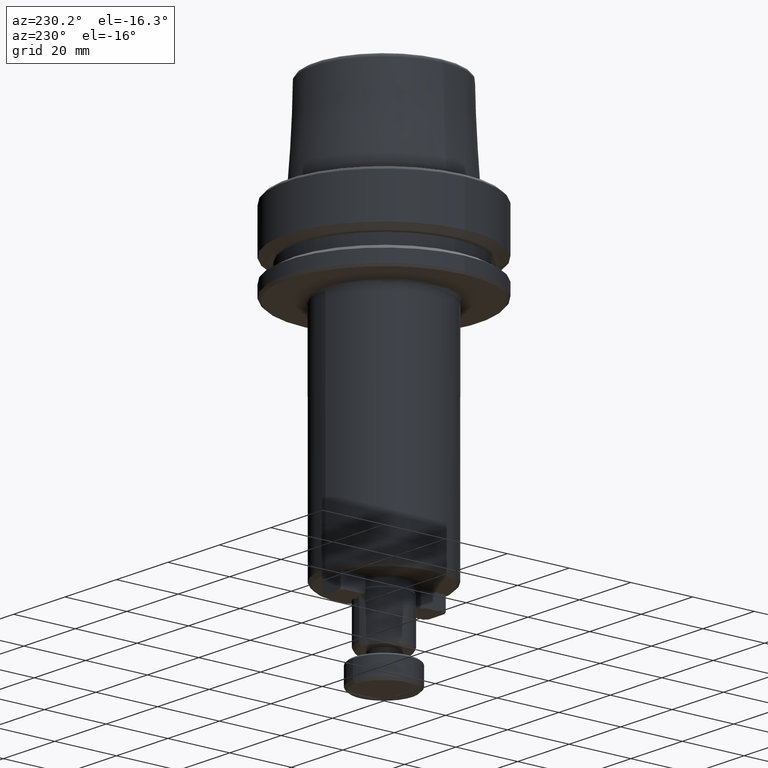
[diagram: clean part render]
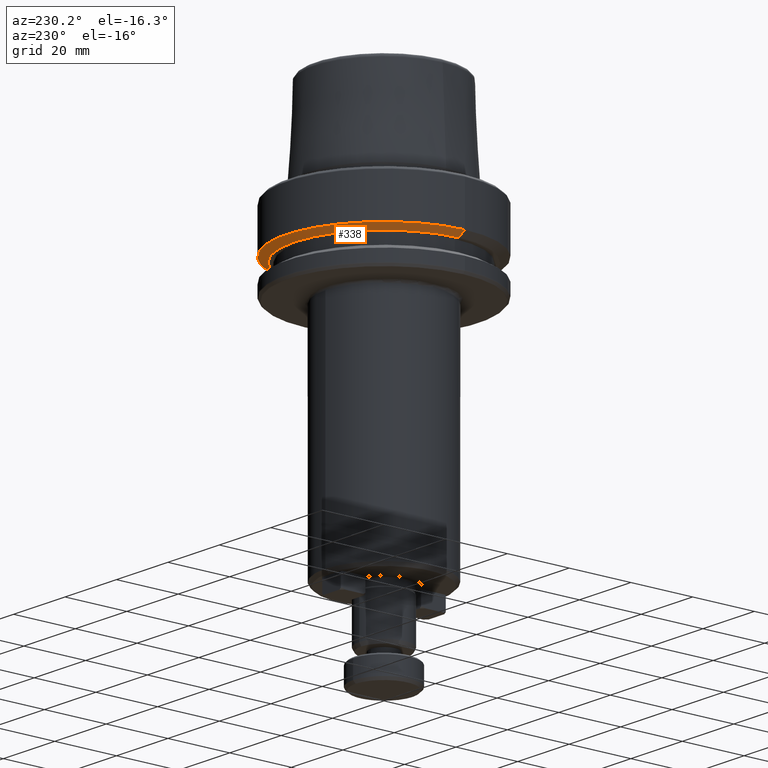
[diagram: same view with one face highlighted and labeled with its STEP entity id]
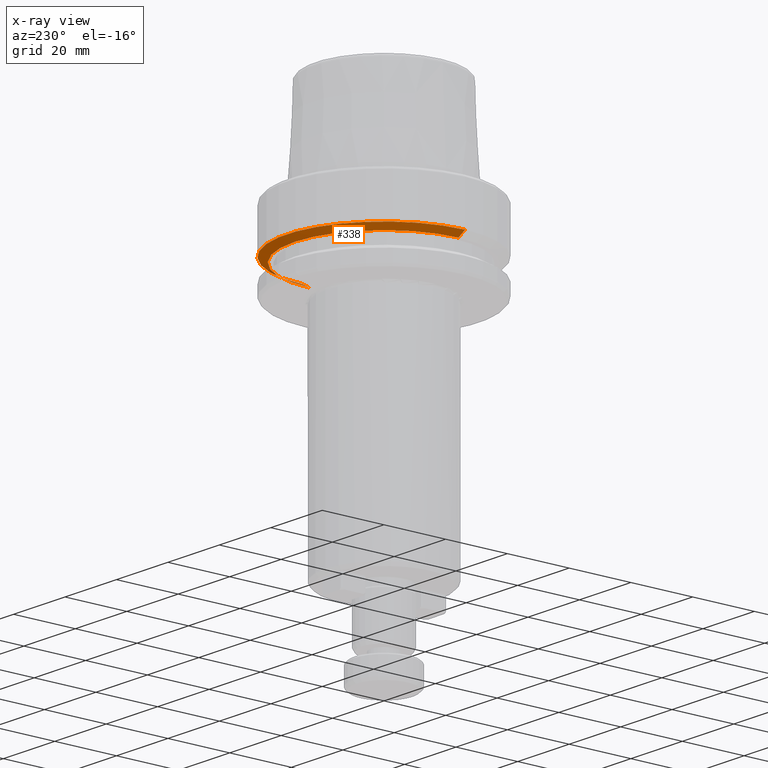
[diagram: x-ray of the same camera — body ghosted, the highlighted face saturated]
A machine part, auxiliary view. The second image highlights one B-rep face of the part: STEP entity #338.
The next image is the same camera in x-ray: the body ghosted, the highlighted face saturated — about 2% of this face is hidden behind the body in this view.
In plain terms, the highlighted conical surface has half-angle 60 deg.
Its self-contained STEP definition (entity closure, byte-faithful):
#29 = ORIENTED_EDGE ( 'NONE', *, *, #1712, .T. ) ;
#172 = DIRECTION ( 'NONE',  ( 1.000000000000000000, 0.0000000000000000000, 0.0000000000000000000 ) ) ;
#239 = VECTOR ( 'NONE', #1722, 1000.000000000000000 ) ;
#245 = DIRECTION ( 'NONE',  ( -0.0000000000000000000, -0.0000000000000000000, 1.000000000000000000 ) ) ;
#332 = VERTEX_POINT ( 'NONE', #556 ) ;
#338 = ADVANCED_FACE ( 'NONE', ( #2639 ), #1907, .T. ) ;
#500 = AXIS2_PLACEMENT_3D ( 'NONE', #2238, #925, #2453 ) ;
#504 = EDGE_CURVE ( 'NONE', #332, #1559, #1058, .T. ) ;
#556 = CARTESIAN_POINT ( 'NONE',  ( 28.94089653438085100, 0.0000000000000000000, -16.10000000000001600 ) ) ;
#570 = CIRCLE ( 'NONE', #500, 28.94089653438085100 ) ;
#573 = DIRECTION ( 'NONE',  ( -0.0000000000000000000, -0.0000000000000000000, 1.000000000000000000 ) ) ;
#590 = CARTESIAN_POINT ( 'NONE',  ( 31.50000000000000000, 0.0000000000000000000, -14.62250092524070100 ) ) ;
#652 = VERTEX_POINT ( 'NONE', #2752 ) ;
#748 = AXIS2_PLACEMENT_3D ( 'NONE', #1587, #573, #172 ) ;
#795 = ORIENTED_EDGE ( 'NONE', *, *, #2798, .T. ) ;
#906 = CIRCLE ( 'NONE', #1273, 31.50000000000000000 ) ;
#911 = DIRECTION ( 'NONE',  ( 0.8660254037844389300, 0.0000000000000000000, 0.4999999999999995000 ) ) ;
#925 = DIRECTION ( 'NONE',  ( -0.0000000000000000000, -0.0000000000000000000, 1.000000000000000000 ) ) ;
#1058 = LINE ( 'NONE', #2501, #2143 ) ;
#1273 = AXIS2_PLACEMENT_3D ( 'NONE', #1526, #245, #1738 ) ;
#1276 = CARTESIAN_POINT ( 'NONE',  ( -28.94089653438085100, 3.700937523921292900E-015, -16.10000000000001600 ) ) ;
#1481 = CARTESIAN_POINT ( 'NONE',  ( -28.94089653438085100, 3.544237630528423800E-015, -16.10000000000001600 ) ) ;
#1526 = CARTESIAN_POINT ( 'NONE',  ( 0.0000000000000000000, 0.0000000000000000000, -14.62250092524070100 ) ) ;
#1549 = EDGE_LOOP ( 'NONE', ( #795, #29, #1945, #1888 ) ) ;
#1559 = VERTEX_POINT ( 'NONE', #590 ) ;
#1587 = CARTESIAN_POINT ( 'NONE',  ( 0.0000000000000000000, 0.0000000000000000000, -16.10000000000001600 ) ) ;
#1712 = EDGE_CURVE ( 'NONE', #2577, #652, #2081, .T. ) ;
#1722 = DIRECTION ( 'NONE',  ( -0.8660254037844389300, 1.060575238724907300E-016, 0.4999999999999995000 ) ) ;
#1738 = DIRECTION ( 'NONE',  ( 1.000000000000000000, 0.0000000000000000000, 0.0000000000000000000 ) ) ;
#1888 = ORIENTED_EDGE ( 'NONE', *, *, #504, .F. ) ;
#1907 = CONICAL_SURFACE ( 'NONE', #748, 28.94089653438085100, 1.047197551196598300 ) ;
#1945 = ORIENTED_EDGE ( 'NONE', *, *, #2658, .F. ) ;
#2081 = LINE ( 'NONE', #1481, #239 ) ;
#2143 = VECTOR ( 'NONE', #911, 1000.000000000000000 ) ;
#2238 = CARTESIAN_POINT ( 'NONE',  ( 0.0000000000000000000, 0.0000000000000000000, -16.10000000000001600 ) ) ;
#2453 = DIRECTION ( 'NONE',  ( 1.000000000000000000, 0.0000000000000000000, 0.0000000000000000000 ) ) ;
#2501 = CARTESIAN_POINT ( 'NONE',  ( 28.94089653438085100, 0.0000000000000000000, -16.10000000000001600 ) ) ;
#2577 = VERTEX_POINT ( 'NONE', #1276 ) ;
#2639 = FACE_OUTER_BOUND ( 'NONE', #1549, .T. ) ;
#2658 = EDGE_CURVE ( 'NONE', #1559, #652, #906, .T. ) ;
#2752 = CARTESIAN_POINT ( 'NONE',  ( -31.50000000000000000, 3.857637417314162700E-015, -14.62250092524070100 ) ) ;
#2798 = EDGE_CURVE ( 'NONE', #332, #2577, #570, .T. ) ;